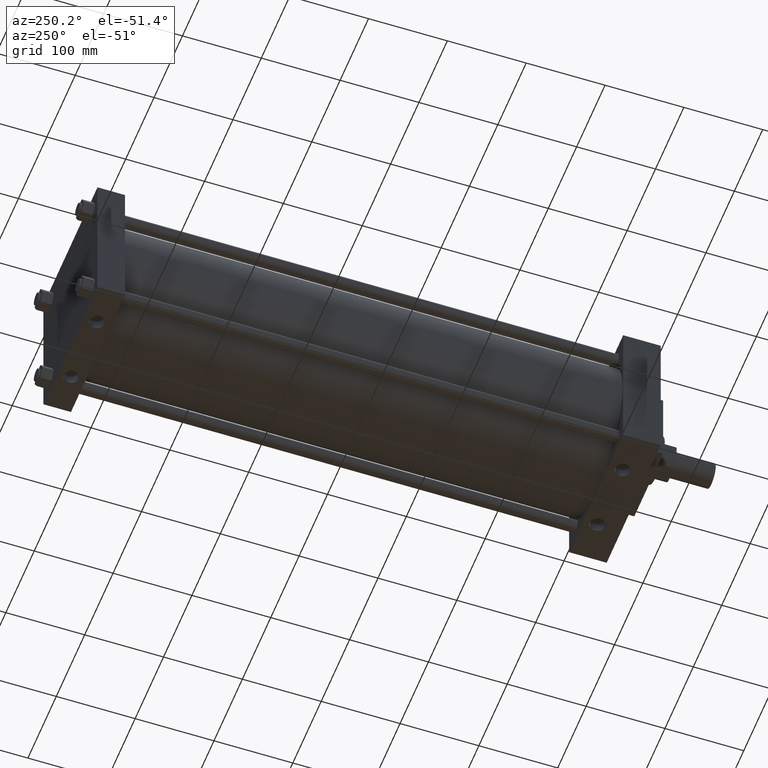
[diagram: clean part render]
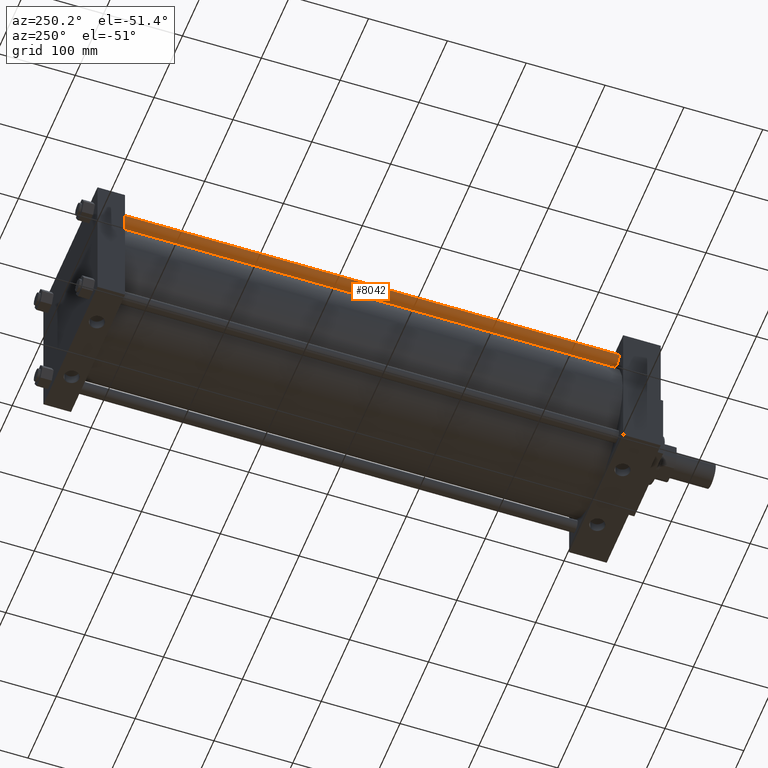
[diagram: same view with one face highlighted and labeled with its STEP entity id]
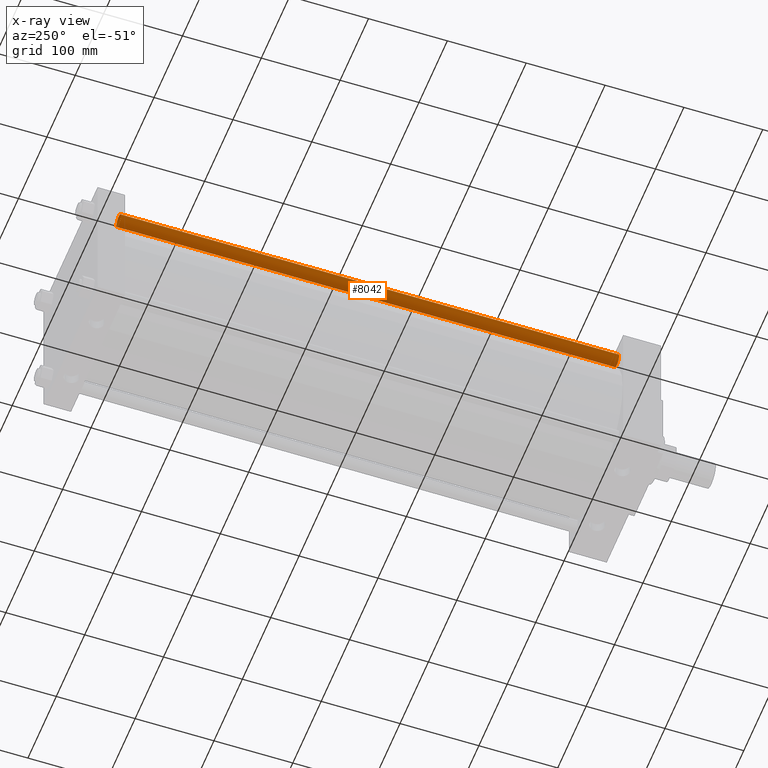
[diagram: x-ray of the same camera — body ghosted, the highlighted face saturated]
A machine part, auxiliary view. The second image highlights one B-rep face of the part: STEP entity #8042.
The next image is the same camera in x-ray: the body ghosted, the highlighted face saturated — about 0% of this face is hidden behind the body in this view.
In plain terms, the highlighted cylindrical surface (bore or boss wall) has radius 7.9375 mm, axis along (0, -1, 0).
Its self-contained STEP definition (entity closure, byte-faithful):
#527=EDGE_CURVE('',#533,#533,#528,.T.);
#528=CIRCLE('',#529,7.937500000E+000);
#529=AXIS2_PLACEMENT_3D('',#530,#531,#532);
#530=CARTESIAN_POINT('',(-7.277100000E+001,9.525000000E+001,7.277100000E+001));
#531=DIRECTION('',(0.0E+000,1.0E+000,0.0E+000));
#532=DIRECTION('',(1.0E+000,0.0E+000,0.0E+000));
#533=VERTEX_POINT('',#534);
#534=CARTESIAN_POINT('',(-7.277100000E+001,9.525000000E+001,6.483350000E+001));
#1260=FACE_OUTER_BOUND('',#1262,.T.);
#1261=FACE_BOUND('',#1263,.T.);
#1262=EDGE_LOOP('',(#1264));
#1263=EDGE_LOOP('',(#1265));
#1264=ORIENTED_EDGE('',*,*,#1319,.F.);
#1265=ORIENTED_EDGE('',*,*,#527,.T.);
#1266=CYLINDRICAL_SURFACE('',#1267,7.937500000E+000);
#1267=AXIS2_PLACEMENT_3D('',#1268,#1269,#1270);
#1268=CARTESIAN_POINT('',(-7.277100000E+001,7.270750000E+002,7.277100000E+001));
#1269=DIRECTION('',(0.0E+000,-1.0E+000,0.0E+000));
#1270=DIRECTION('',(0.0E+000,0.0E+000,-1.0E+000));
#1319=EDGE_CURVE('',#1325,#1325,#1320,.T.);
#1320=CIRCLE('',#1321,7.937500000E+000);
#1321=AXIS2_PLACEMENT_3D('',#1322,#1323,#1324);
#1322=CARTESIAN_POINT('',(-7.277100000E+001,7.270750000E+002,7.277100000E+001));
#1323=DIRECTION('',(0.0E+000,1.0E+000,0.0E+000));
#1324=DIRECTION('',(1.0E+000,0.0E+000,0.0E+000));
#1325=VERTEX_POINT('',#1326);
#1326=CARTESIAN_POINT('',(-6.483350000E+001,7.270750000E+002,7.277100000E+001));
#8042=ADVANCED_FACE('',(#1260,#1261),#1266,.T.);